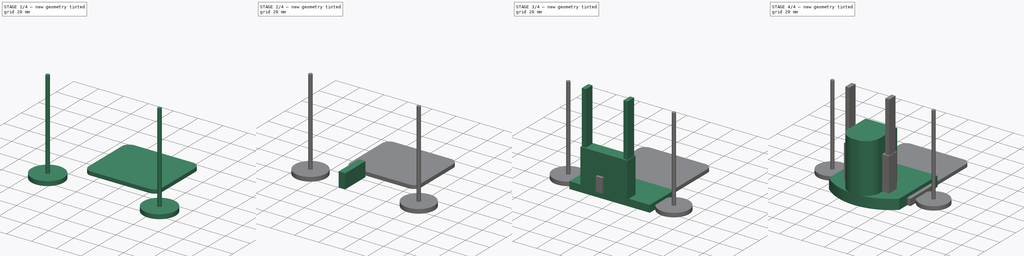
[diagram: build sequence overview — one tinted view per stage of 4, left to right]
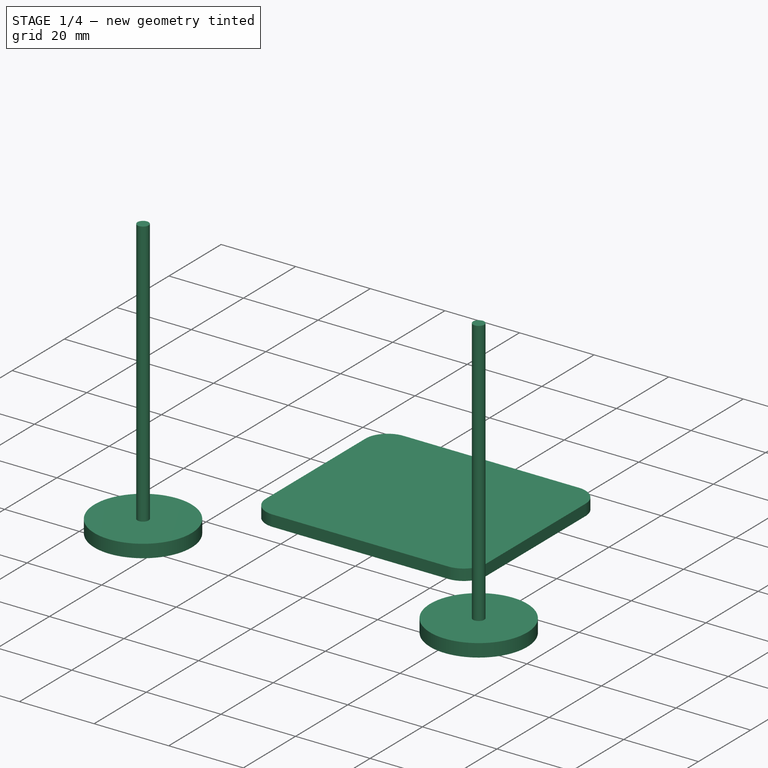
[diagram: stage 1 of 4 — iso view after this stage's code; geometry added in this stage tinted green]
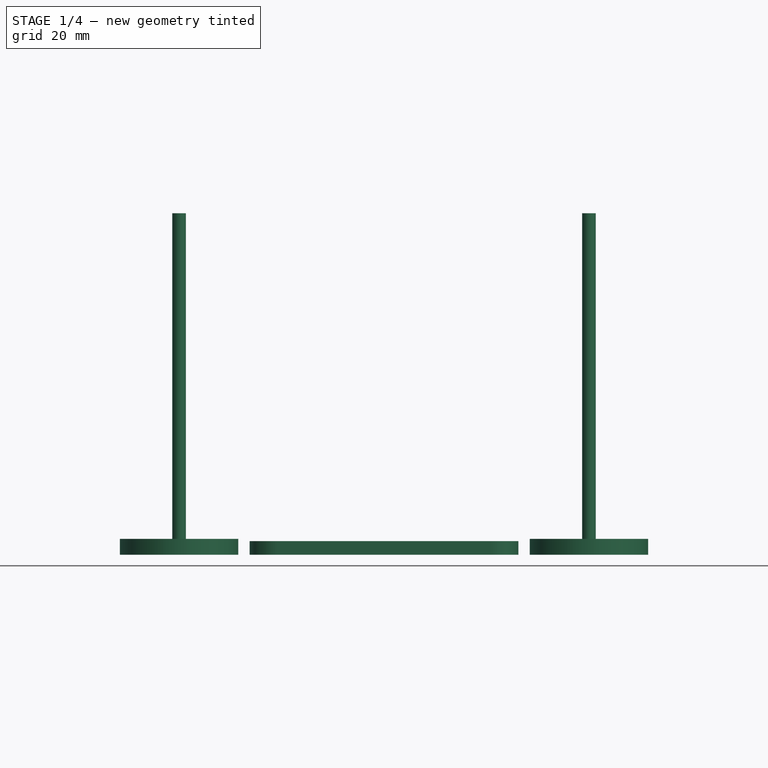
[diagram: stage 1 of 4 — front view after this stage's code; geometry added in this stage tinted green]
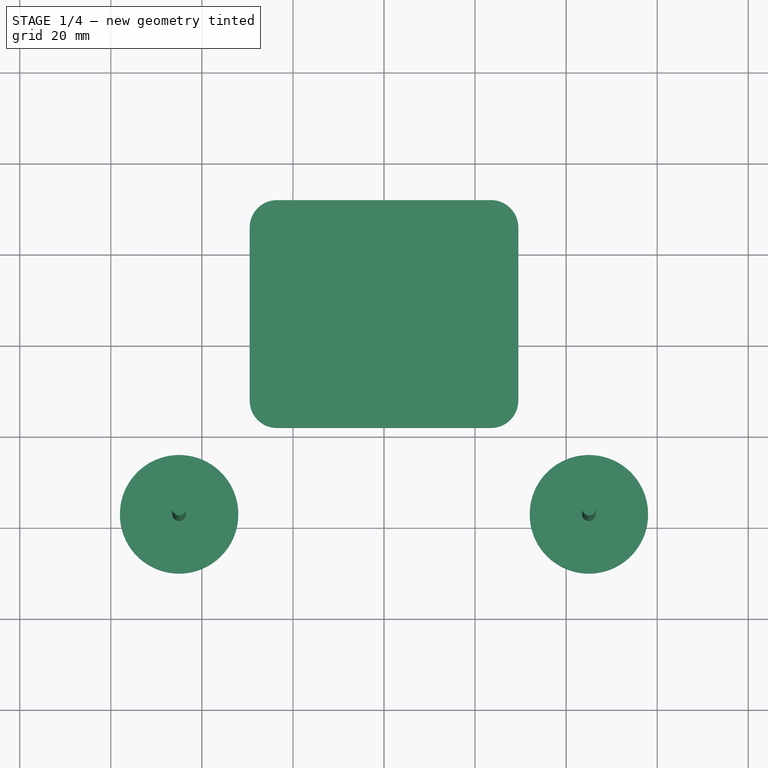
[diagram: stage 1 of 4 — top view after this stage's code; geometry added in this stage tinted green]
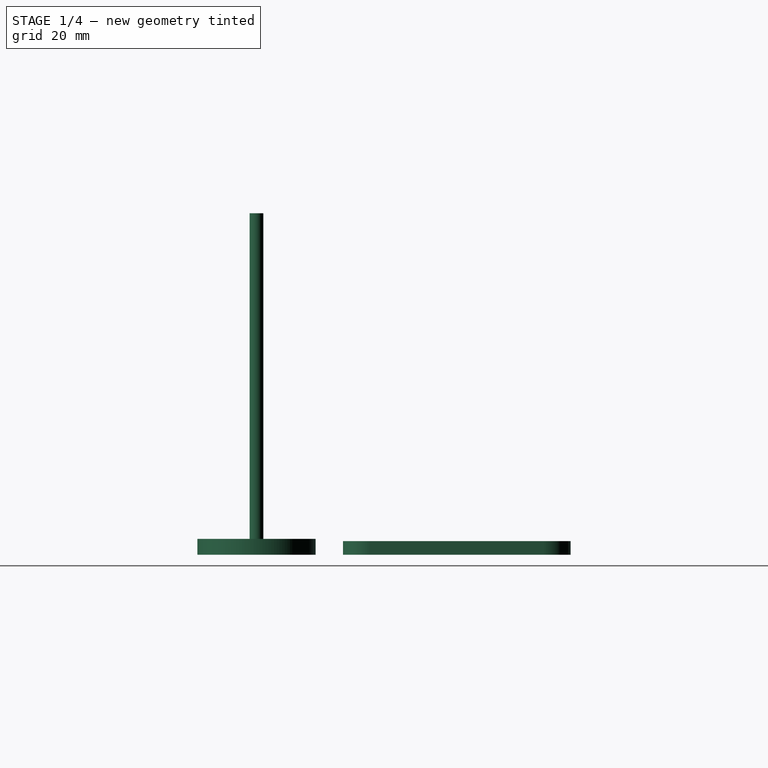
[diagram: stage 1 of 4 — right view after this stage's code; geometry added in this stage tinted green]
FCSTD DOCUMENT  (FreeCAD 0.21R33771 (Git))
Label: RyobiBatteryAdapterCutout
License: All rights reserved
LicenseURL: http://en.wikipedia.org/wiki/All_rights_reserved
objects: Part::Extrusion×10, Sketcher::SketchObject×9, Part::MultiFuse×2
note: 21 computed .brp shape members not serialized (recipe doc carries the construction recipe); baked Part::Feature solids carry a one-line shape summary decoded from their .brp

FEATURE [Part::Extrusion] Extrude010
  Base = -> Sketch006
  Dir = (0,0,1)
  DirMode = 2
  FaceMakerClass = Part::FaceMakerBullseye
  LengthFwd = 3
  LengthRev = 0
  Solid = true
  Symmetric = false
FEATURE [Sketcher::SketchObject] Sketch007
  FullyConstrained = true
  sketch-geometry (2):
    g0: Circle CenterX=-45 CenterY=23 CenterZ=0 NormalX=0 NormalY=0 NormalZ=1 AngleXU=0 Radius=1.5
    g1: Circle CenterX=45 CenterY=23 CenterZ=0 NormalX=0 NormalY=0 NormalZ=1 AngleXU=0 Radius=1.5
  constraints (6):
    c: Radius(g0) = 1.5
    c: Radius(g1) = 1.5
    c: Horizontal(g1,g0)
    c: DistanceY(g-1,g0) = 23
    c: DistanceX(g0,g-1) = 45
    c: DistanceX(g-1,g1) = 45
FEATURE [Sketcher::SketchObject] Sketch008
  FullyConstrained = true
  sketch-geometry (2):
    g0: Circle CenterX=-45 CenterY=23 CenterZ=0 NormalX=0 NormalY=0 NormalZ=1 AngleXU=0 Radius=13
    g1: Circle CenterX=45 CenterY=23 CenterZ=0 NormalX=0 NormalY=0 NormalZ=1 AngleXU=0 Radius=13
  constraints (6):
    c: Radius(g0) = 13
    c: Radius(g1) = 13
    c: Horizontal(g1,g0)
    c: DistanceY(g-1,g0) = 23
    c: DistanceX(g0,g-1) = 45
    c: DistanceX(g-1,g1) = 45
FEATURE [Part::Extrusion] Extrude012
  Base = -> Sketch007
  Dir = (0,0,1)
  DirMode = 2
  FaceMakerClass = Part::FaceMakerBullseye
  LengthFwd = 75
  LengthRev = 0
  Solid = true
  Symmetric = false
FEATURE [Part::Extrusion] Extrude014
  Base = -> Sketch008
  Dir = (0,0,1)
  DirMode = 2
  FaceMakerClass = Part::FaceMakerBullseye
  LengthFwd = 3.5
  LengthRev = 0
  Solid = true
  Symmetric = false
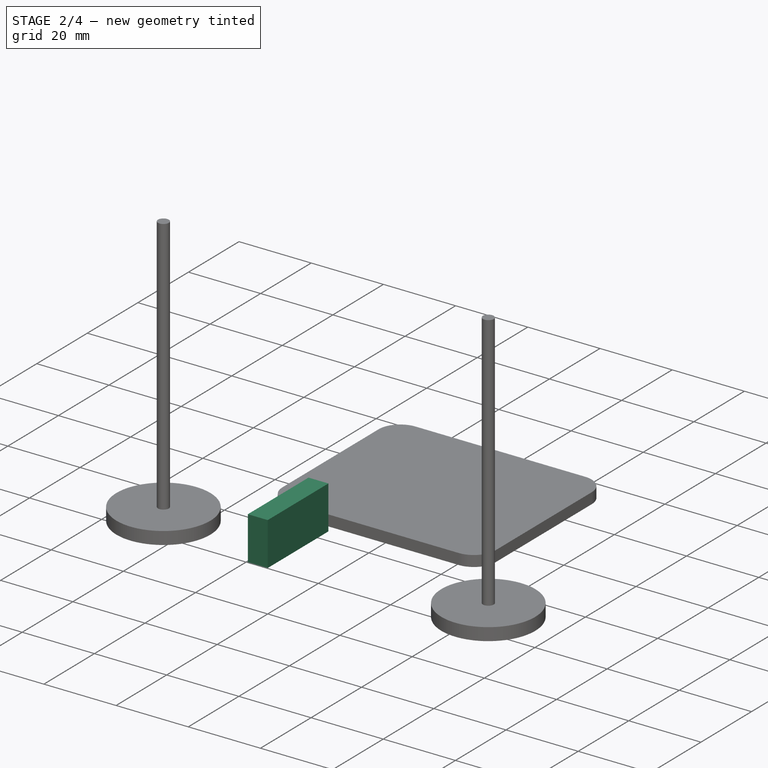
[diagram: stage 2 of 4 — iso view after this stage's code; geometry added in this stage tinted green]
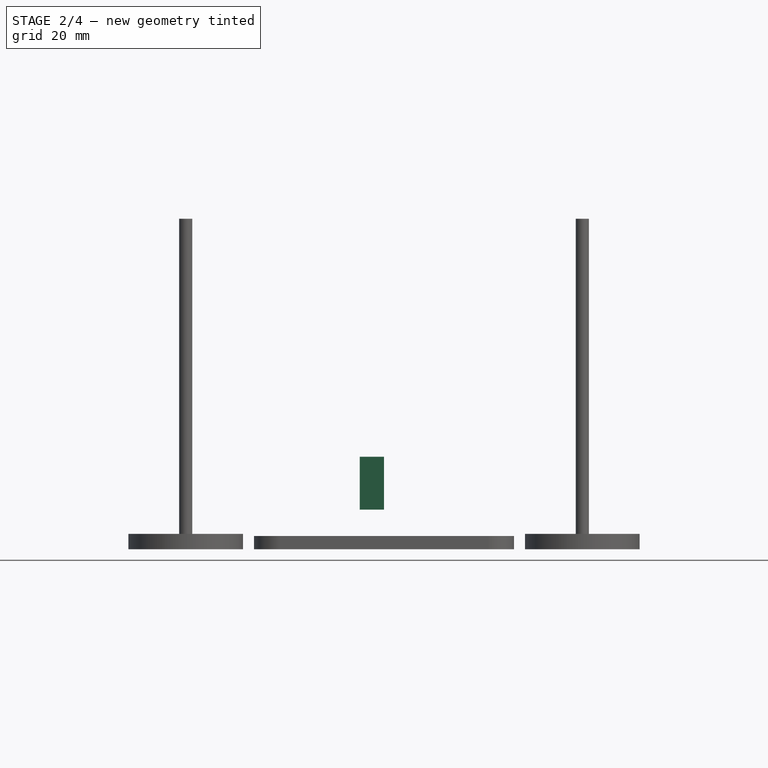
[diagram: stage 2 of 4 — front view after this stage's code; geometry added in this stage tinted green]
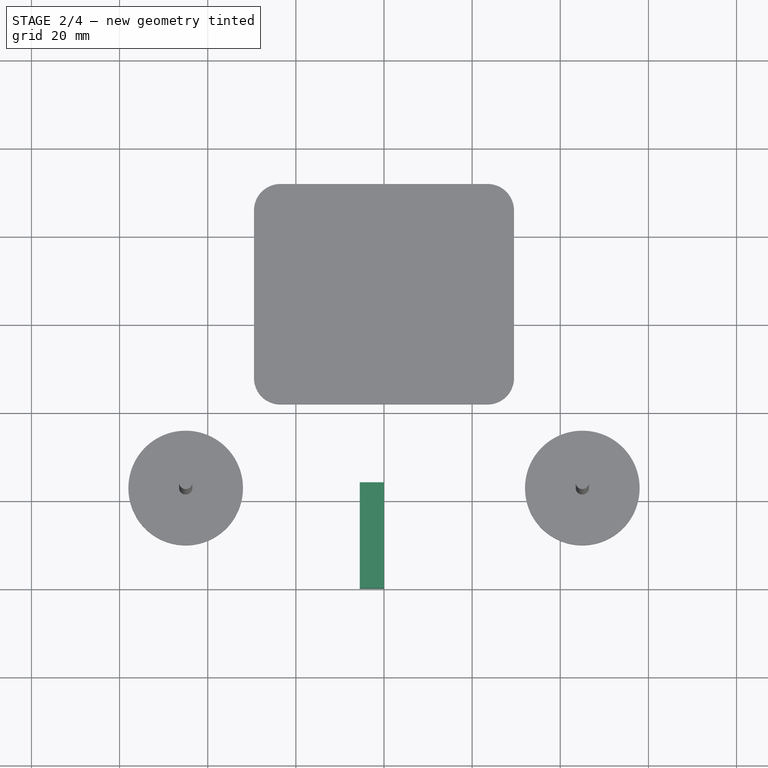
[diagram: stage 2 of 4 — top view after this stage's code; geometry added in this stage tinted green]
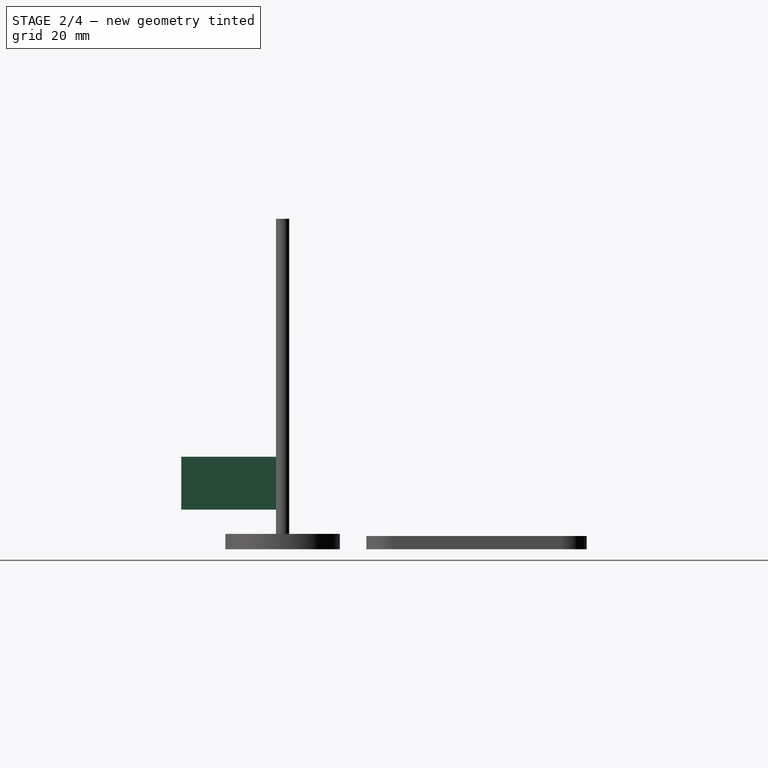
[diagram: stage 2 of 4 — right view after this stage's code; geometry added in this stage tinted green]
FEATURE [Sketcher::SketchObject] Sketch
  FullyConstrained = true
  sketch-geometry (5):
    g0: ArcOfCircle CenterX=-3.2e-15 CenterY=33.6901 CenterZ=0 NormalX=0 NormalY=0 NormalZ=1 AngleXU=0 Radius=46.6901 StartAngle=3.97911 EndAngle=5.44566
    g1: LineSegment StartX=-31.25 StartY=-1 StartZ=0 EndX=-31.25 EndY=47.5 EndZ=0
    g2: LineSegment StartX=31.25 StartY=-1 StartZ=0 EndX=31.25 EndY=47.5 EndZ=0
    g3: LineSegment StartX=-31.25 StartY=47.5 StartZ=0 EndX=31.25 EndY=47.5 EndZ=0
    g4: GeomPoint X=0 Y=-13 Z=0
  constraints (14):
    c: Coincident(g1,g0)
    c: Vertical(g1)
    c: Coincident(g2,g0)
    c: Vertical(g2)
    c: Coincident(g3,g1)
    c: Coincident(g3,g2)
    c: Horizontal(g3)
    c: Symmetric(g0,g0,g-2)
    c: DistanceX(g0,g-1) = 31.25
    c: PointOnObject(g4,g0)
    c: DistanceY(g4,g-1) = 13
    c: DistanceY(g4,g2) = 60.5
    c: DistanceY(g0,g-1) = 1
    c: PointOnObject(g4,g-2)
FEATURE [Part::Extrusion] Extrude
  Base = -> Sketch
  Dir = (0,0,1)
  DirMode = 2
  FaceMakerClass = Part::FaceMakerBullseye
  LengthFwd = 9
  LengthRev = 0
  Solid = true
  Symmetric = false
FEATURE [Sketcher::SketchObject] Sketch005
  FullyConstrained = true
  MapMode = 5
  Placement = pos=(0,0,9) rot=(0,0,1;0rad)
  Support = -> [Extrude]
  sketch-geometry (4):
    g0: LineSegment StartX=0 StartY=24 StartZ=0 EndX=-5.5 EndY=24 EndZ=0
    g1: LineSegment StartX=-5.5 StartY=24 StartZ=0 EndX=-5.5 EndY=0 EndZ=0
    g2: LineSegment StartX=-5.5 StartY=0 StartZ=0 EndX=0 EndY=0 EndZ=0
    g3: LineSegment StartX=0 StartY=0 StartZ=0 EndX=0 EndY=24 EndZ=0
  constraints (12):
    c: Coincident(g0,g1)
    c: Coincident(g1,g2)
    c: Coincident(g2,g3)
    c: Coincident(g3,g0)
    c: Horizontal(g0)
    c: Horizontal(g2)
    c: Vertical(g1)
    c: Vertical(g3)
    c: PointOnObject(g0,g-2)
    c: DistanceY(g3,g3) = 24
    c: PointOnObject(g2,g-1)
    c: DistanceX(g0,g0) = 5.5
FEATURE [Part::Extrusion] Extrude008
  Base = -> Sketch005
  Dir = (0,0,1)
  DirMode = 2
  FaceMakerClass = Part::FaceMakerBullseye
  LengthFwd = 12
  LengthRev = 0
  Solid = true
  Symmetric = false
FEATURE [Sketcher::SketchObject] Sketch006
  FullyConstrained = true
  sketch-geometry (10):
    g0: ArcOfCircle CenterX=-23.5 CenterY=86 CenterZ=0 NormalX=0 NormalY=0 NormalZ=1 AngleXU=0 Radius=6 StartAngle=1.5708 EndAngle=3.14159
    g1: LineSegment StartX=-23.5 StartY=92 StartZ=0 EndX=23.5 EndY=92 EndZ=0
    g2: ArcOfCircle CenterX=23.5 CenterY=86 CenterZ=0 NormalX=0 NormalY=0 NormalZ=1 AngleXU=0 Radius=6 StartAngle=0 EndAngle=1.5708
    g3: LineSegment StartX=29.5 StartY=86 StartZ=0 EndX=29.5 EndY=48 EndZ=0
    g4: ArcOfCircle CenterX=23.5 CenterY=48 CenterZ=0 NormalX=0 NormalY=0 NormalZ=1 AngleXU=0 Radius=6 StartAngle=4.71239 EndAngle=6.28319
    g5: LineSegment StartX=23.5 StartY=42 StartZ=0 EndX=-23.5 EndY=42 EndZ=0
    g6: ArcOfCircle CenterX=-23.5 CenterY=48 CenterZ=0 NormalX=0 NormalY=0 NormalZ=1 AngleXU=0 Radius=6 StartAngle=3.14159 EndAngle=4.71239
    g7: LineSegment StartX=-29.5 StartY=48 StartZ=0 EndX=-29.5 EndY=86 EndZ=0
    g8: GeomPoint X=-29.5 Y=92 Z=0
    g9: GeomPoint X=29.5 Y=42 Z=0
  constraints (24):
    c: Tangent(g0,g1) = 1.5708
    c: Tangent(g1,g2) = 1.5708
    c: Tangent(g2,g3) = 1.5708
    c: Tangent(g3,g4) = 1.5708
    c: Tangent(g4,g5) = 1.5708
    c: Tangent(g5,g6) = 1.5708
    c: Tangent(g6,g7) = 1.5708
    c: Tangent(g7,g0) = 1.5708
    c: Horizontal(g1)
    c: Horizontal(g5)
    c: Vertical(g3)
    c: Vertical(g7)
    c: Equal(g0,g2)
    c: Equal(g2,g4)
    c: Equal(g4,g6)
    c: PointOnObject(g8,g1)
    c: PointOnObject(g8,g7)
    c: PointOnObject(g9,g3)
    c: PointOnObject(g9,g5)
    c: DistanceX(g6,g3) = 59
    c: Radius(g4) = 6
    c: DistanceX(g6,g-1) = 29.5
    c: DistanceY(g1) = 92
    c: DistanceY(g5,g0) = 50
FEATURE [Part::Extrusion] Extrude009
  Base = -> Sketch006
  Dir = (0,0,1)
  DirMode = 2
  FaceMakerClass = Part::FaceMakerBullseye
  LengthFwd = 3
  LengthRev = 0
  Solid = true
  Symmetric = false
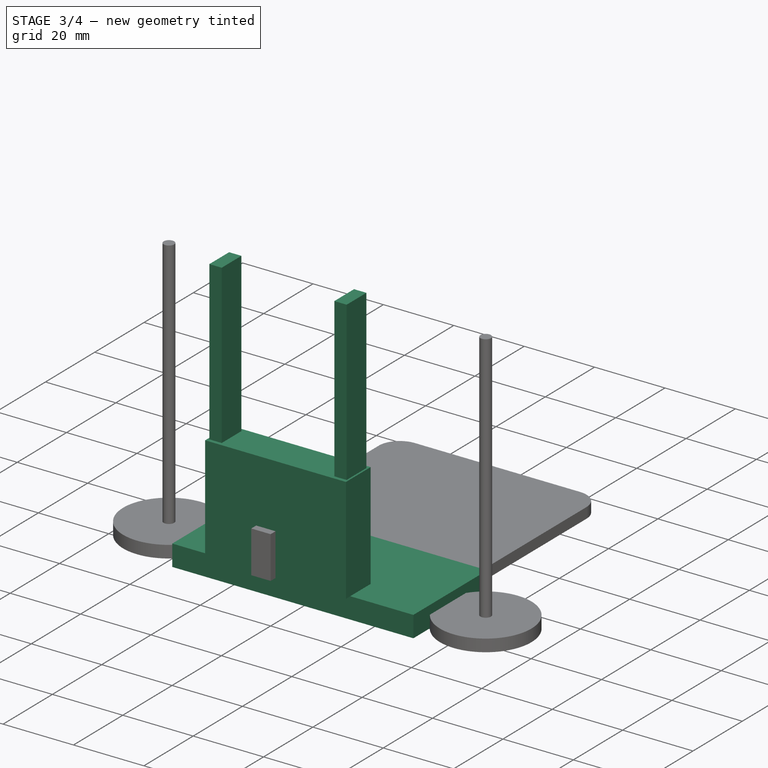
[diagram: stage 3 of 4 — iso view after this stage's code; geometry added in this stage tinted green]
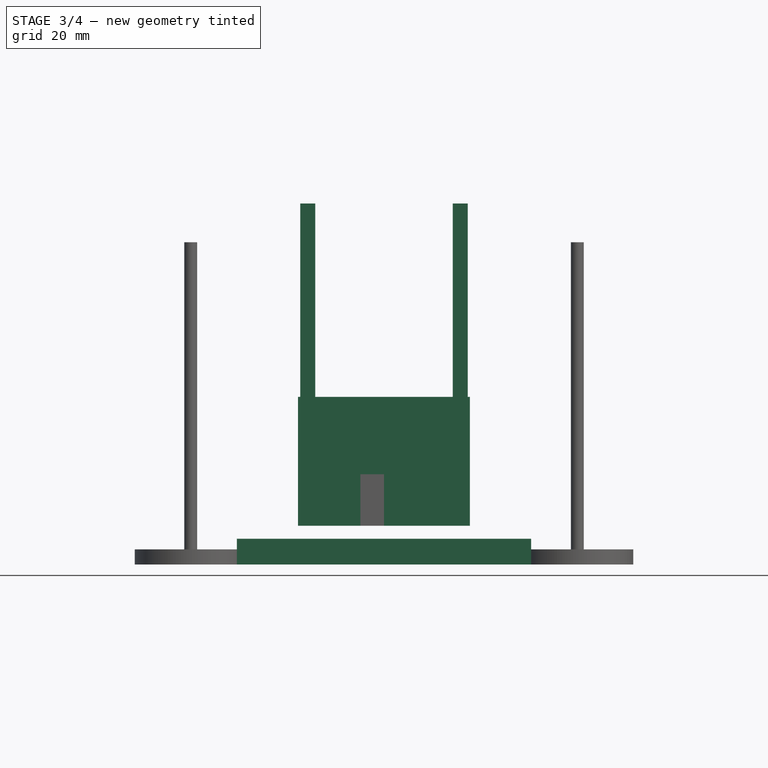
[diagram: stage 3 of 4 — front view after this stage's code; geometry added in this stage tinted green]
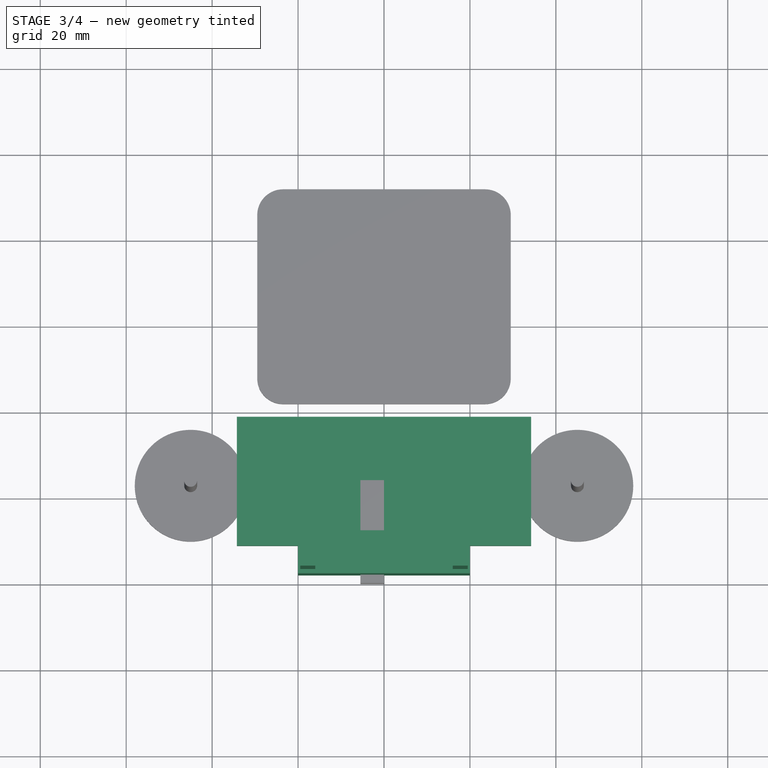
[diagram: stage 3 of 4 — top view after this stage's code; geometry added in this stage tinted green]
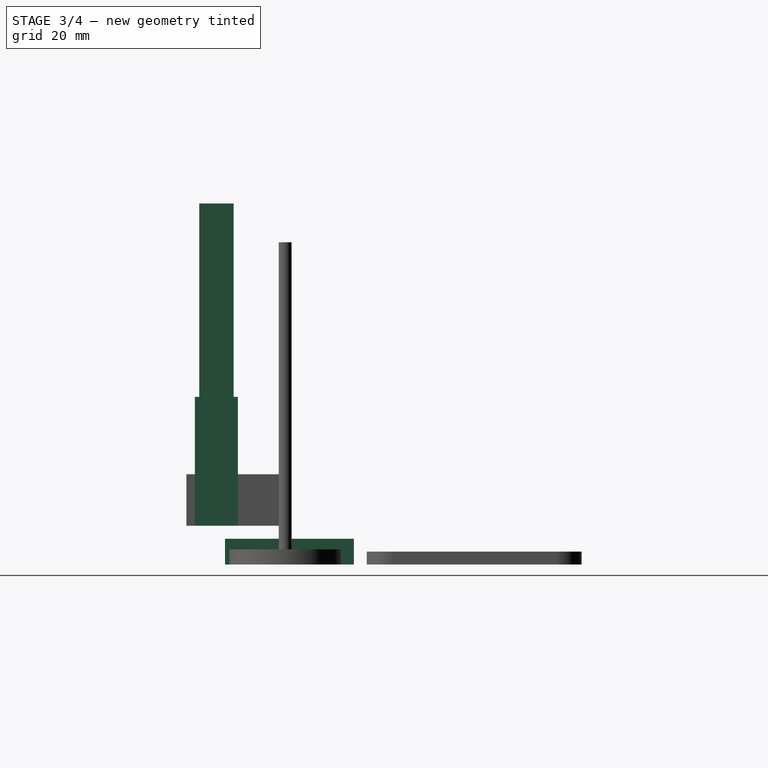
[diagram: stage 3 of 4 — right view after this stage's code; geometry added in this stage tinted green]
FEATURE [Sketcher::SketchObject] Sketch002
  FullyConstrained = true
  MapMode = 5
  Placement = pos=(0,0,9) rot=(0,0,1;0rad)
  Support = -> [Extrude]
  sketch-geometry (8):
    g0: LineSegment StartX=-19.5 StartY=11 StartZ=0 EndX=-16 EndY=11 EndZ=0
    g1: LineSegment StartX=-16 StartY=11 StartZ=0 EndX=-16 EndY=3 EndZ=0
    g2: LineSegment StartX=-16 StartY=3 StartZ=0 EndX=-19.5 EndY=3 EndZ=0
    g3: LineSegment StartX=-19.5 StartY=3 StartZ=0 EndX=-19.5 EndY=11 EndZ=0
    g4: LineSegment StartX=16 StartY=11 StartZ=0 EndX=19.5 EndY=11 EndZ=0
    g5: LineSegment StartX=19.5 StartY=11 StartZ=0 EndX=19.5 EndY=3 EndZ=0
    g6: LineSegment StartX=19.5 StartY=3 StartZ=0 EndX=16 EndY=3 EndZ=0
    g7: LineSegment StartX=16 StartY=3 StartZ=0 EndX=16 EndY=11 EndZ=0
  constraints (23):
    c: Coincident(g0,g1)
    c: Coincident(g1,g2)
    c: Coincident(g2,g3)
    c: Coincident(g3,g0)
    c: Horizontal(g0)
    c: Horizontal(g2)
    c: Vertical(g1)
    c: Vertical(g3)
    c: Coincident(g4,g5)
    c: Coincident(g5,g6)
    c: Coincident(g6,g7)
    c: Coincident(g7,g4)
    c: Horizontal(g4)
    c: Horizontal(g6)
    c: Vertical(g5)
    c: Vertical(g7)
    c: Equal(g0,g4)
    c: Equal(g3,g7)
    c: Symmetric(g6,g1,g-2)
    c: DistanceY(g-1,g1) = 3
    c: DistanceX(g0,g0) = 3.5
    c: DistanceX(g0,g-1) = 16
    c: DistanceY(g5,g4) = 8
FEATURE [Part::Extrusion] Extrude003
  Base = -> Sketch002
  Dir = (0,0,1)
  DirMode = 2
  FaceMakerClass = Part::FaceMakerBullseye
  LengthFwd = 75
  LengthRev = 0
  Solid = true
  Symmetric = false
FEATURE [Sketcher::SketchObject] Sketch003
  FullyConstrained = true
  MapMode = 5
  Placement = pos=(0,0,9) rot=(0,0,1;0rad)
  Support = -> [Extrude]
  sketch-geometry (4):
    g0: LineSegment StartX=-20 StartY=12 StartZ=0 EndX=20 EndY=12 EndZ=0
    g1: LineSegment StartX=20 StartY=12 StartZ=0 EndX=20 EndY=2 EndZ=0
    g2: LineSegment StartX=20 StartY=2 StartZ=0 EndX=-20 EndY=2 EndZ=0
    g3: LineSegment StartX=-20 StartY=2 StartZ=0 EndX=-20 EndY=12 EndZ=0
  constraints (12):
    c: Coincident(g0,g1)
    c: Coincident(g1,g2)
    c: Coincident(g2,g3)
    c: Coincident(g3,g0)
    c: Horizontal(g0)
    c: Horizontal(g2)
    c: Vertical(g1)
    c: Vertical(g3)
    c: DistanceX(g0,g0) = 40
    c: DistanceY(g2,g0) = 10
    c: DistanceX(g2,g-1) = 20
    c: DistanceY(g-1,g1) = 2
FEATURE [Part::Extrusion] Extrude005
  Base = -> Sketch003
  Dir = (0,0,1)
  DirMode = 2
  FaceMakerClass = Part::FaceMakerBullseye
  LengthFwd = 30
  LengthRev = 0
  Solid = true
  Symmetric = false
FEATURE [Sketcher::SketchObject] Sketch004
  FullyConstrained = true
  sketch-geometry (4):
    g0: LineSegment StartX=-34.25 StartY=39 StartZ=0 EndX=34.25 EndY=39 EndZ=0
    g1: LineSegment StartX=34.25 StartY=39 StartZ=0 EndX=34.25 EndY=9 EndZ=0
    g2: LineSegment StartX=34.25 StartY=9 StartZ=0 EndX=-34.25 EndY=9 EndZ=0
    g3: LineSegment StartX=-34.25 StartY=9 StartZ=0 EndX=-34.25 EndY=39 EndZ=0
  constraints (12):
    c: Coincident(g0,g1)
    c: Coincident(g1,g2)
    c: Coincident(g2,g3)
    c: Coincident(g3,g0)
    c: Horizontal(g0)
    c: Horizontal(g2)
    c: Vertical(g1)
    c: Vertical(g3)
    c: DistanceY(g3,g3) = 30
    c: DistanceY(g-1,g2) = 9
    c: DistanceX(g0,g0) = 68.5
    c: DistanceX(g2,g-1) = 34.25
FEATURE [Part::Extrusion] Extrude006
  Base = -> Sketch004
  Dir = (0,0,1)
  DirMode = 2
  FaceMakerClass = Part::FaceMakerBullseye
  LengthFwd = 6
  LengthRev = 0
  Solid = true
  Symmetric = false
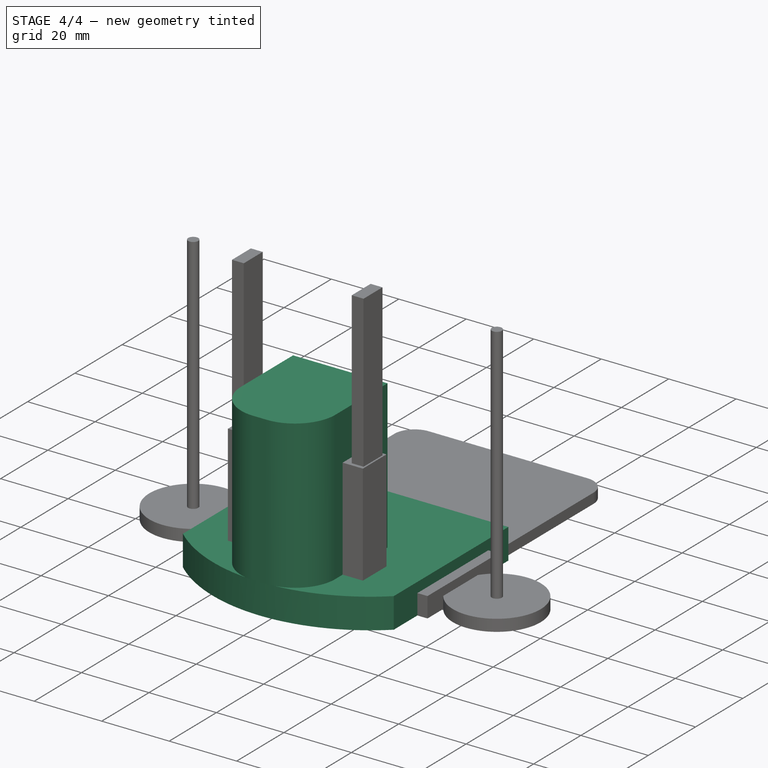
[diagram: stage 4 of 4 — iso view after this stage's code; geometry added in this stage tinted green]
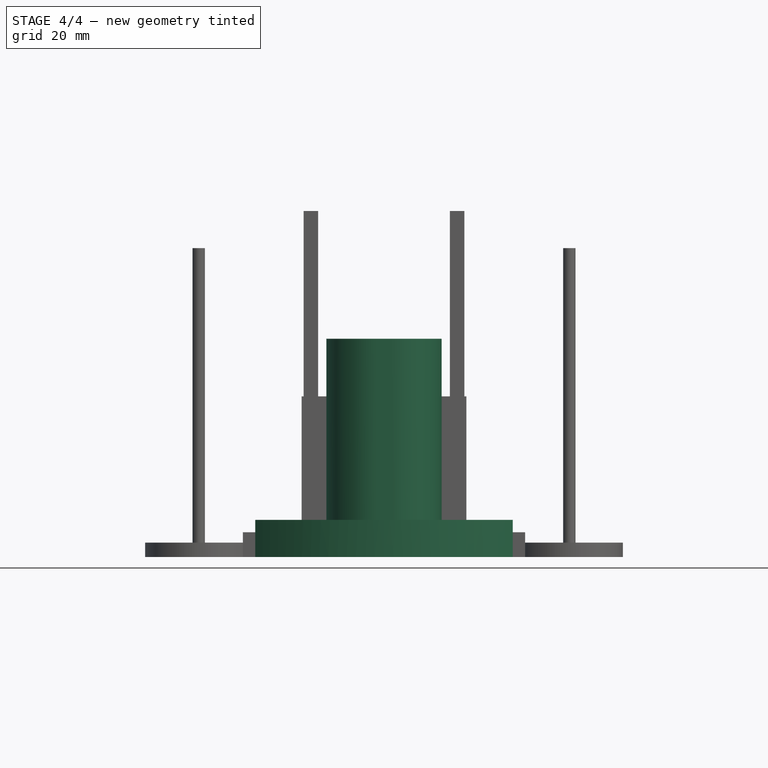
[diagram: stage 4 of 4 — front view after this stage's code; geometry added in this stage tinted green]
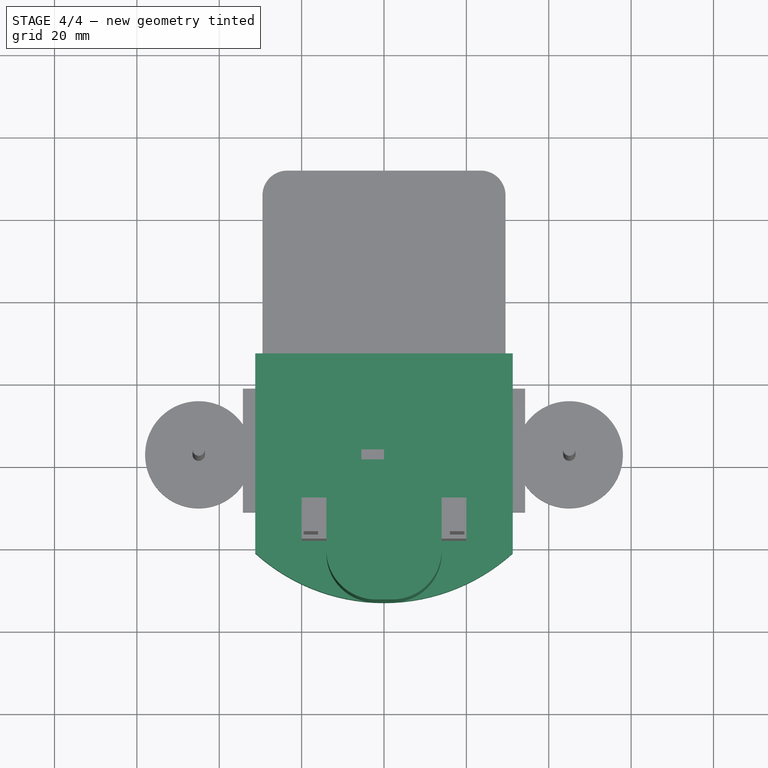
[diagram: stage 4 of 4 — top view after this stage's code; geometry added in this stage tinted green]
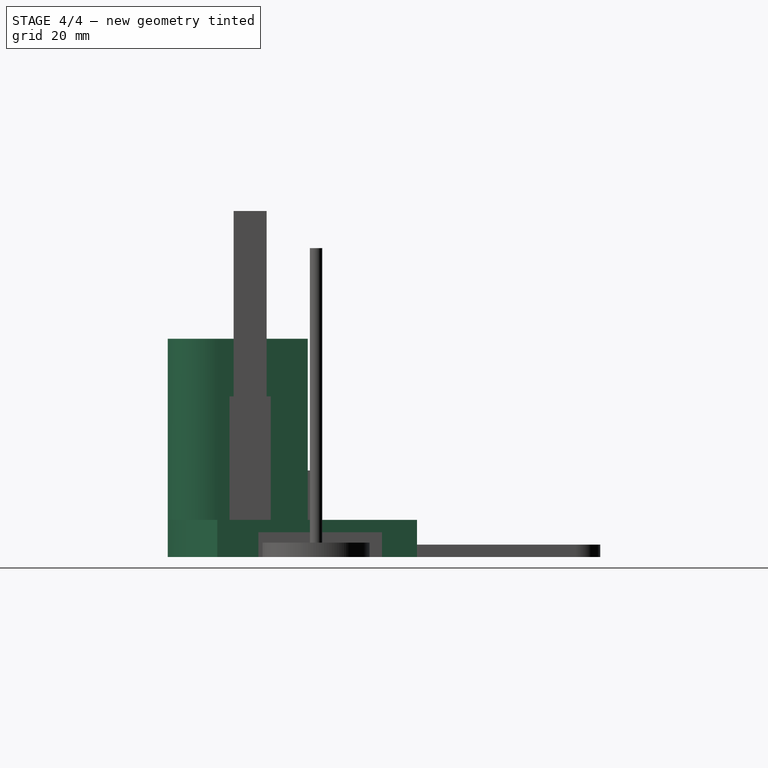
[diagram: stage 4 of 4 — right view after this stage's code; geometry added in this stage tinted green]
FEATURE [Sketcher::SketchObject] Sketch001
  FullyConstrained = true
  MapMode = 5
  Placement = pos=(0,0,9) rot=(0,0,1;0rad)
  Support = -> [Extrude]
  sketch-geometry (7):
    g0: LineSegment StartX=-14 StartY=21 StartZ=0 EndX=-14 EndY=-1 EndZ=0
    g1: LineSegment StartX=-14 StartY=21 StartZ=0 EndX=14 EndY=21 EndZ=0
    g2: LineSegment StartX=14 StartY=21 StartZ=0 EndX=14 EndY=-1 EndZ=0
    g3: GeomPoint X=0 Y=-13 Z=0
    g4: ArcOfCircle CenterX=-2 CenterY=-1 CenterZ=0 NormalX=0 NormalY=0 NormalZ=1 AngleXU=0 Radius=12 StartAngle=3.14159 EndAngle=4.71239
    g5: ArcOfCircle CenterX=2 CenterY=-1 CenterZ=0 NormalX=0 NormalY=0 NormalZ=1 AngleXU=0 Radius=12 StartAngle=4.71239 EndAngle=6.28319
    g6: LineSegment StartX=-2 StartY=-13 StartZ=0 EndX=2 EndY=-13 EndZ=0
  constraints (22):
    c: Vertical(g0)
    c: Coincident(g1,g0)
    c: Horizontal(g1)
    c: Coincident(g2,g1)
    c: Vertical(g2)
    c: DistanceX(g0,g1) = 28
    c: Horizontal(g0,g2)
    c: PointOnObject(g3,g-2)
    c: DistanceY(g3,g-1) = 13
    c: DistanceY(g3,g0) = 34
    c: Coincident(g4,g0)
    c: Coincident(g5,g2)
    c: Coincident(g6,g4)
    c: Coincident(g6,g5)
    c: Equal(g5,g4)
    c: Radius(g5) = 12
    c: Horizontal(g6)
    c: DistanceY(g5,g-1) = 13
    c: DistanceY(g5,g2) = 12
    c: DistanceX(g0,g-1) = 14
    c: DistanceX(g6,g6) = 4
    c: DistanceX(g3,g5) = 2
FEATURE [Part::Extrusion] Extrude002
  Base = -> Sketch001
  Dir = (0,0,1)
  DirMode = 2
  FaceMakerClass = Part::FaceMakerBullseye
  LengthFwd = 44
  LengthRev = 0
  Solid = true
  Symmetric = false
FEATURE [Part::MultiFuse] Fusion
  Shapes = -> [Extrude,Extrude002,Extrude003,Extrude005,Extrude006,Extrude008,Extrude009,Extrude010]
FEATURE [Part::MultiFuse] Fusion001
  Shapes = -> [Fusion,Extrude012,Extrude014]
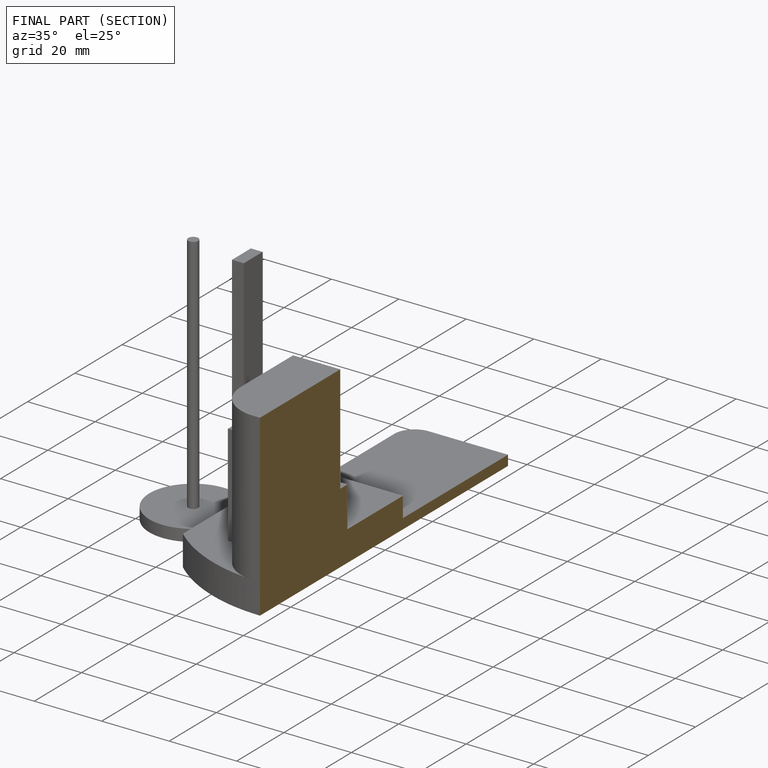
[diagram: finished part — half-section view (interior)]
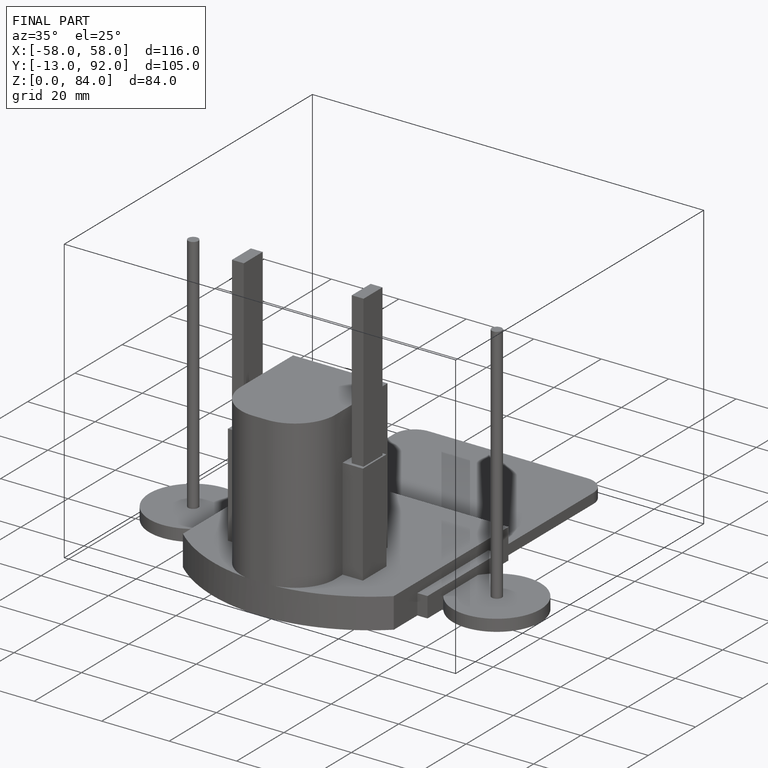
[diagram: finished part — iso view with bounding-box wireframe]
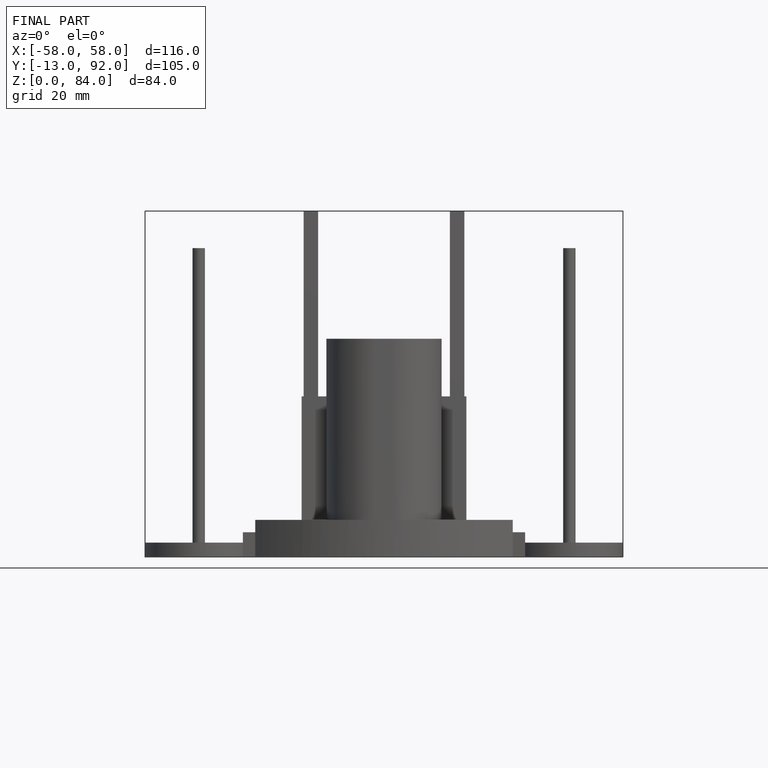
[diagram: finished part — front view with bounding-box wireframe]
